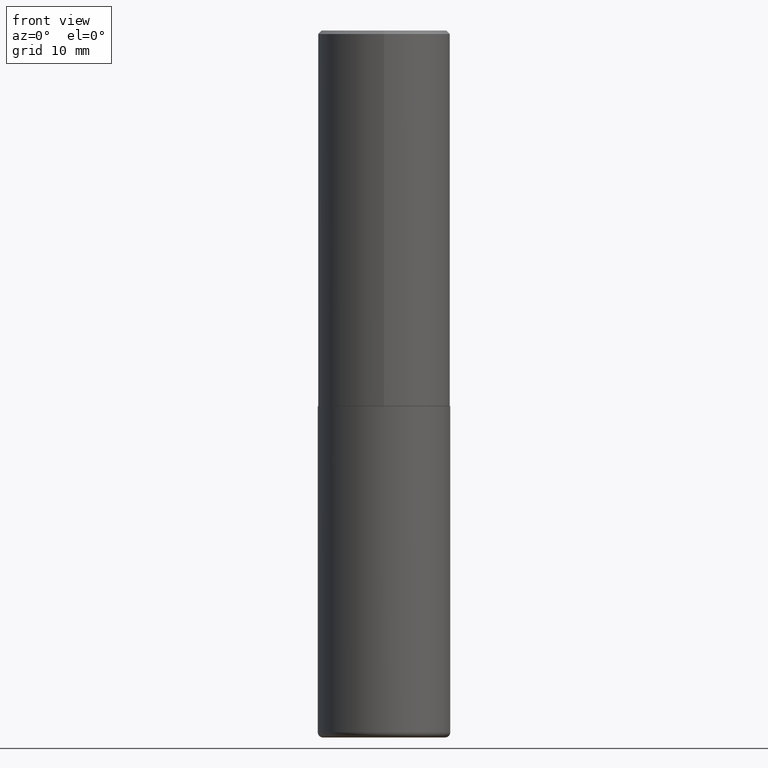
[diagram: clean part render]
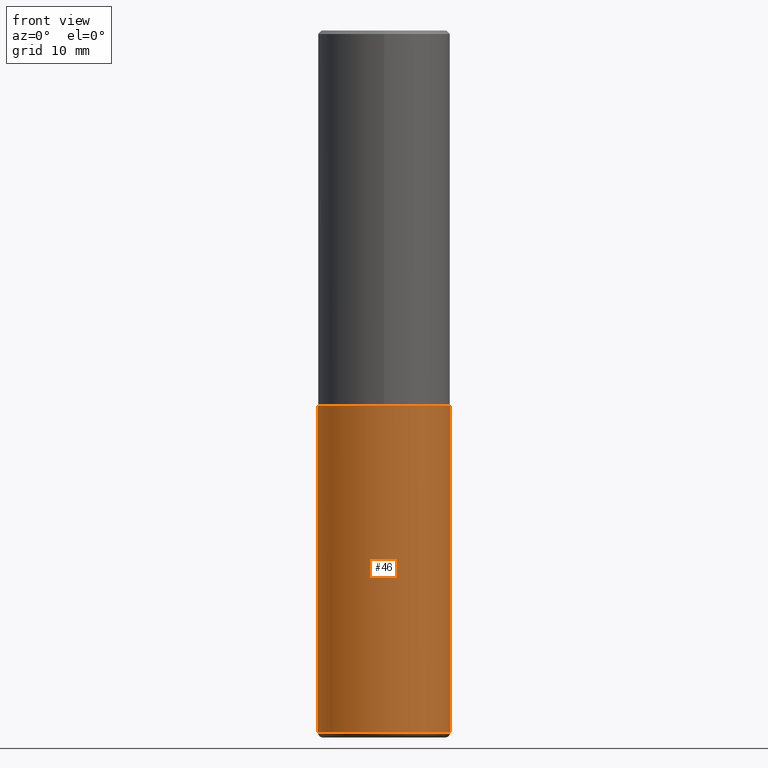
[diagram: same view with one face highlighted and labeled with its STEP entity id]
A machine part, front view. The second image highlights one B-rep face of the part: STEP entity #46.
In plain terms, the highlighted cylindrical surface (partial cylindrical patch) has radius 9.525 mm, axis along (-0, 0, 1).
Its self-contained STEP definition (entity closure, byte-faithful):
#1 = DIRECTION ( 'NONE',  ( -2.445468806185136597E-29, 3.491481338843145583E-15, 1.000000000000000000 ) ) ;
#13 = LINE ( 'NONE', #235, #143 ) ;
#46 = ADVANCED_FACE ( 'NONE', ( #341 ), #399, .T. ) ;
#61 = CARTESIAN_POINT ( 'NONE',  ( 0.3749999999999999445, -1.647979191933963740E-14, -3.970000000000000195 ) ) ;
#62 = AXIS2_PLACEMENT_3D ( 'NONE', #200, #233, #355 ) ;
#91 = CIRCLE ( 'NONE', #62, 0.3750000000000000555 ) ;
#97 = LINE ( 'NONE', #413, #255 ) ;
#108 = ORIENTED_EDGE ( 'NONE', *, *, #228, .T. ) ;
#133 = DIRECTION ( 'NONE',  ( 1.000000000000000000, -6.982962677686266711E-15, 0.000000000000000000 ) ) ;
#136 = DIRECTION ( 'NONE',  ( -2.445468806185136877E-29, 3.491481338843145188E-15, 1.000000000000000000 ) ) ;
#143 = VECTOR ( 'NONE', #136, 39.37007874015748143 ) ;
#144 = EDGE_CURVE ( 'NONE', #221, #146, #91, .T. ) ;
#146 = VERTEX_POINT ( 'NONE', #61 ) ;
#147 = VERTEX_POINT ( 'NONE', #162 ) ;
#152 = DIRECTION ( 'NONE',  ( 1.000000000000000000, -6.982962677686265922E-15, 4.876176775795935793E-29 ) ) ;
#155 = ORIENTED_EDGE ( 'NONE', *, *, #351, .F. ) ;
#162 = CARTESIAN_POINT ( 'NONE',  ( 0.3750000000000000555, -1.003800884917403364E-14, -2.125000000000000000 ) ) ;
#193 = ORIENTED_EDGE ( 'NONE', *, *, #265, .F. ) ;
#200 = CARTESIAN_POINT ( 'NONE',  ( 9.708511160554992872E-29, -1.386118091520728738E-14, -3.970000000000000195 ) ) ;
#205 = CARTESIAN_POINT ( 'NONE',  ( -0.3749999999999999445, -1.119664565610691011E-14, -3.970000000000000195 ) ) ;
#211 = CIRCLE ( 'NONE', #314, 0.3750000000000000555 ) ;
#221 = VERTEX_POINT ( 'NONE', #205 ) ;
#227 = CARTESIAN_POINT ( 'NONE',  ( 0.000000000000000000, 0.000000000000000000, 0.000000000000000000 ) ) ;
#228 = EDGE_CURVE ( 'NONE', #146, #147, #97, .T. ) ;
#233 = DIRECTION ( 'NONE',  ( -2.445468806185136597E-29, 3.491481338843145583E-15, 1.000000000000000000 ) ) ;
#235 = CARTESIAN_POINT ( 'NONE',  ( -0.3750000000000000555, 2.664535259100376091E-15, -1.844600658845589598E-29 ) ) ;
#255 = VECTOR ( 'NONE', #259, 39.37007874015748143 ) ;
#259 = DIRECTION ( 'NONE',  ( -2.445468806185136877E-29, 3.491481338843145188E-15, 1.000000000000000000 ) ) ;
#265 = EDGE_CURVE ( 'NONE', #388, #147, #211, .T. ) ;
#286 = DIRECTION ( 'NONE',  ( -2.445468806185136597E-29, 3.491481338843145583E-15, 1.000000000000000000 ) ) ;
#302 = CARTESIAN_POINT ( 'NONE',  ( -0.3750000000000000555, -7.975754121024110595E-15, -2.125000000000000000 ) ) ;
#306 = ORIENTED_EDGE ( 'NONE', *, *, #144, .T. ) ;
#314 = AXIS2_PLACEMENT_3D ( 'NONE', #416, #1, #133 ) ;
#341 = FACE_OUTER_BOUND ( 'NONE', #409, .T. ) ;
#351 = EDGE_CURVE ( 'NONE', #221, #388, #13, .T. ) ;
#355 = DIRECTION ( 'NONE',  ( 1.000000000000000000, -6.982962677686266711E-15, 0.000000000000000000 ) ) ;
#387 = AXIS2_PLACEMENT_3D ( 'NONE', #227, #286, #152 ) ;
#388 = VERTEX_POINT ( 'NONE', #302 ) ;
#399 = CYLINDRICAL_SURFACE ( 'NONE', #387, 0.3750000000000000555 ) ;
#409 = EDGE_LOOP ( 'NONE', ( #155, #306, #108, #193 ) ) ;
#413 = CARTESIAN_POINT ( 'NONE',  ( 0.3750000000000000555, -2.618611004132350016E-15, 1.828566290923476203E-29 ) ) ;
#416 = CARTESIAN_POINT ( 'NONE',  ( 5.196621213143415268E-29, -7.419397845041683624E-15, -2.125000000000000000 ) ) ;